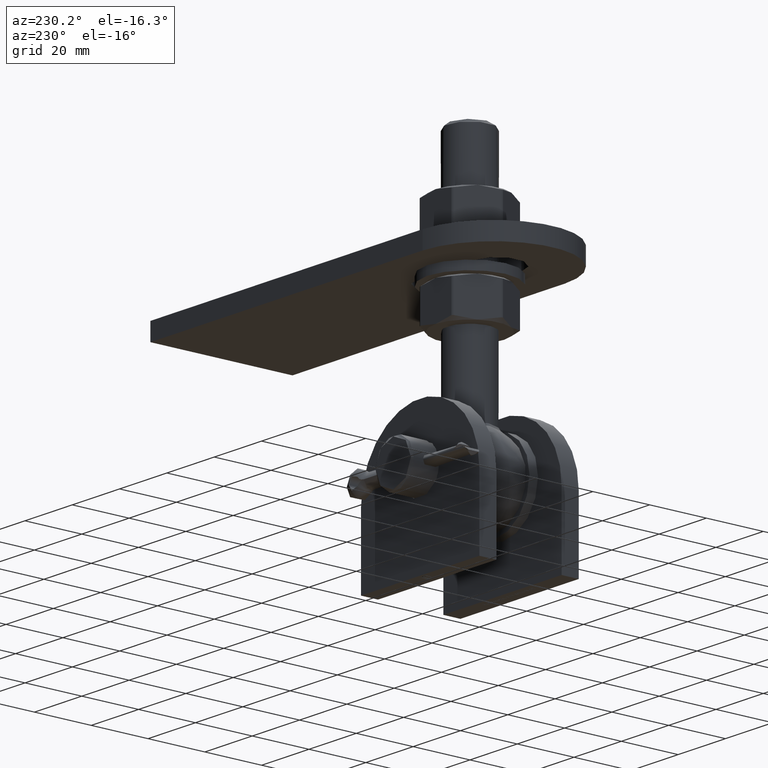
[diagram: clean part render]
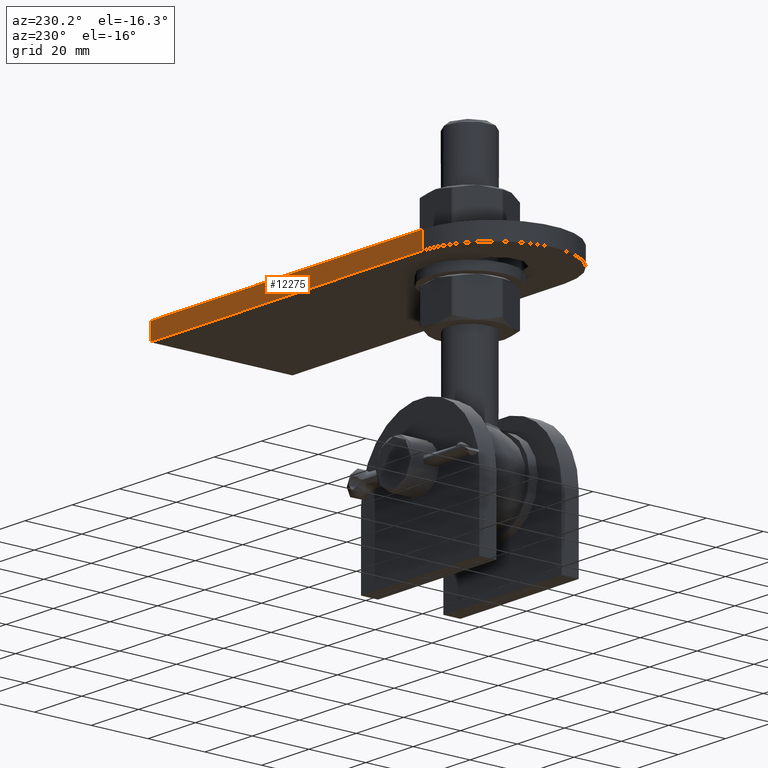
[diagram: same view with one face highlighted and labeled with its STEP entity id]
A machine part, auxiliary view. The second image highlights one B-rep face of the part: STEP entity #12275.
In plain terms, the highlighted planar face has unit normal (-0, -1, 0).
Its self-contained STEP definition (entity closure, byte-faithful):
#2191 = DIRECTION ( 'NONE',  ( -0.000000000000000000, -0.000000000000000000, -1.000000000000000000 ) ) ;
#2611 = DIRECTION ( 'NONE',  ( -1.000000000000000000, 2.111837275102198966E-16, -0.000000000000000000 ) ) ;
#3480 = ORIENTED_EDGE ( 'NONE', *, *, #20053, .T. ) ;
#3671 = EDGE_CURVE ( 'NONE', #4794, #4557, #10360, .T. ) ;
#3870 = VERTEX_POINT ( 'NONE', #25461 ) ;
#4362 = PLANE ( 'NONE',  #5492 ) ;
#4557 = VERTEX_POINT ( 'NONE', #24149 ) ;
#4794 = VERTEX_POINT ( 'NONE', #5093 ) ;
#5093 = CARTESIAN_POINT ( 'NONE',  ( 70.00000000000005684, 24.99999999999998579, 3.000000000000000000 ) ) ;
#5492 = AXIS2_PLACEMENT_3D ( 'NONE', #17668, #10952, #6451 ) ;
#6451 = DIRECTION ( 'NONE',  ( 1.000000000000000000, -2.111837275102198966E-16, 0.000000000000000000 ) ) ;
#7694 = VECTOR ( 'NONE', #2191, 1000.000000000000000 ) ;
#8900 = CARTESIAN_POINT ( 'NONE',  ( -45.00000000000000000, 25.00000000000001066, 3.000000000000000000 ) ) ;
#8916 = ORIENTED_EDGE ( 'NONE', *, *, #3671, .F. ) ;
#10360 = LINE ( 'NONE', #8900, #17353 ) ;
#10952 = DIRECTION ( 'NONE',  ( -2.111837275102198966E-16, -1.000000000000000000, 0.000000000000000000 ) ) ;
#11470 = VECTOR ( 'NONE', #14845, 1000.000000000000000 ) ;
#11818 = DIRECTION ( 'NONE',  ( -0.000000000000000000, -0.000000000000000000, -1.000000000000000000 ) ) ;
#12275 = ADVANCED_FACE ( 'NONE', ( #27448 ), #4362, .F. ) ;
#13631 = LINE ( 'NONE', #19674, #7694 ) ;
#14033 = CARTESIAN_POINT ( 'NONE',  ( -45.00000000000000711, 25.00000000000001776, 3.000000000000000000 ) ) ;
#14845 = DIRECTION ( 'NONE',  ( -1.000000000000000000, 2.111837275102198966E-16, -0.000000000000000000 ) ) ;
#14949 = CARTESIAN_POINT ( 'NONE',  ( -45.00000000000000000, 25.00000000000001066, -3.000000000000000000 ) ) ;
#16171 = CARTESIAN_POINT ( 'NONE',  ( -45.00000000000000711, 25.00000000000001776, -3.000000000000000000 ) ) ;
#16541 = VECTOR ( 'NONE', #11818, 1000.000000000000000 ) ;
#16821 = ORIENTED_EDGE ( 'NONE', *, *, #24978, .F. ) ;
#16923 = EDGE_CURVE ( 'NONE', #4794, #3870, #13631, .T. ) ;
#17353 = VECTOR ( 'NONE', #2611, 1000.000000000000000 ) ;
#17668 = CARTESIAN_POINT ( 'NONE',  ( -45.00000000000000000, 25.00000000000001066, 3.000000000000000000 ) ) ;
#18453 = ORIENTED_EDGE ( 'NONE', *, *, #16923, .T. ) ;
#19674 = CARTESIAN_POINT ( 'NONE',  ( 70.00000000000005684, 24.99999999999998579, 3.000000000000000000 ) ) ;
#20053 = EDGE_CURVE ( 'NONE', #3870, #27118, #27481, .T. ) ;
#23987 = EDGE_LOOP ( 'NONE', ( #3480, #16821, #8916, #18453 ) ) ;
#24149 = CARTESIAN_POINT ( 'NONE',  ( -45.00000000000000711, 25.00000000000001776, 3.000000000000000000 ) ) ;
#24978 = EDGE_CURVE ( 'NONE', #4557, #27118, #26681, .T. ) ;
#25461 = CARTESIAN_POINT ( 'NONE',  ( 70.00000000000005684, 24.99999999999998579, -3.000000000000000000 ) ) ;
#26681 = LINE ( 'NONE', #14033, #16541 ) ;
#27118 = VERTEX_POINT ( 'NONE', #16171 ) ;
#27448 = FACE_OUTER_BOUND ( 'NONE', #23987, .T. ) ;
#27481 = LINE ( 'NONE', #14949, #11470 ) ;